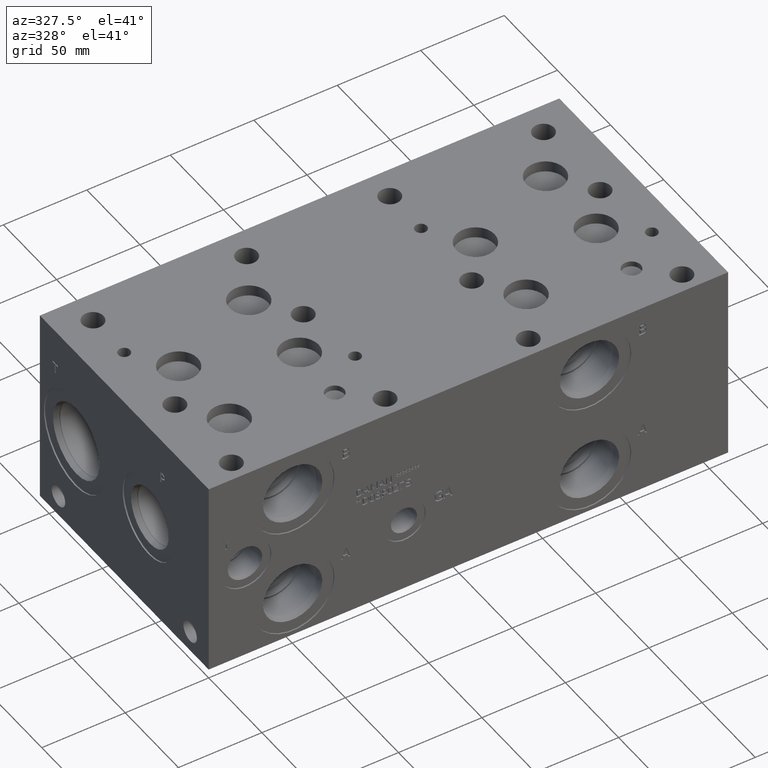
[diagram: clean part render]
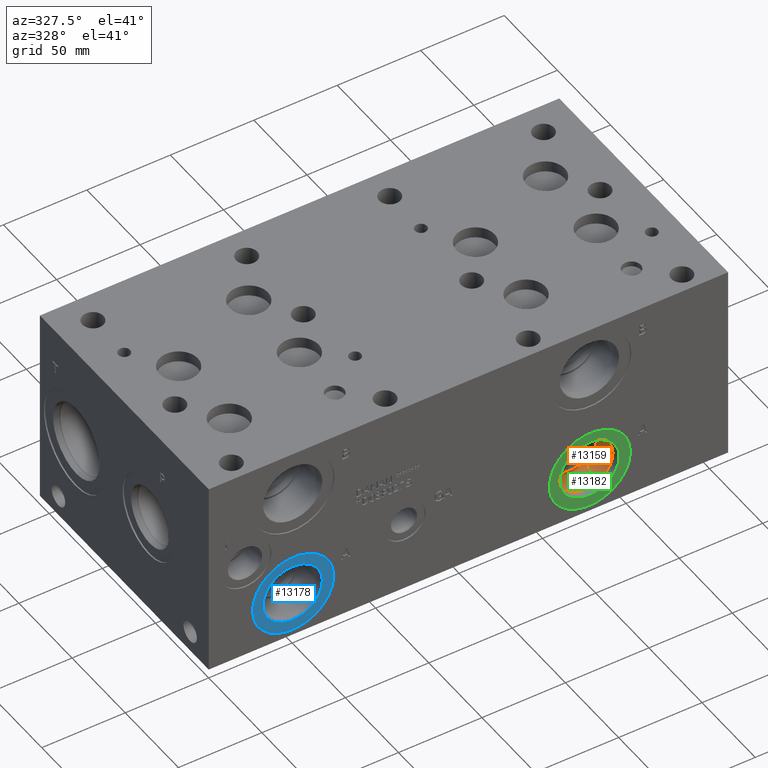
[diagram: same view with three faces highlighted in distinct colors, each labeled with its STEP entity id]
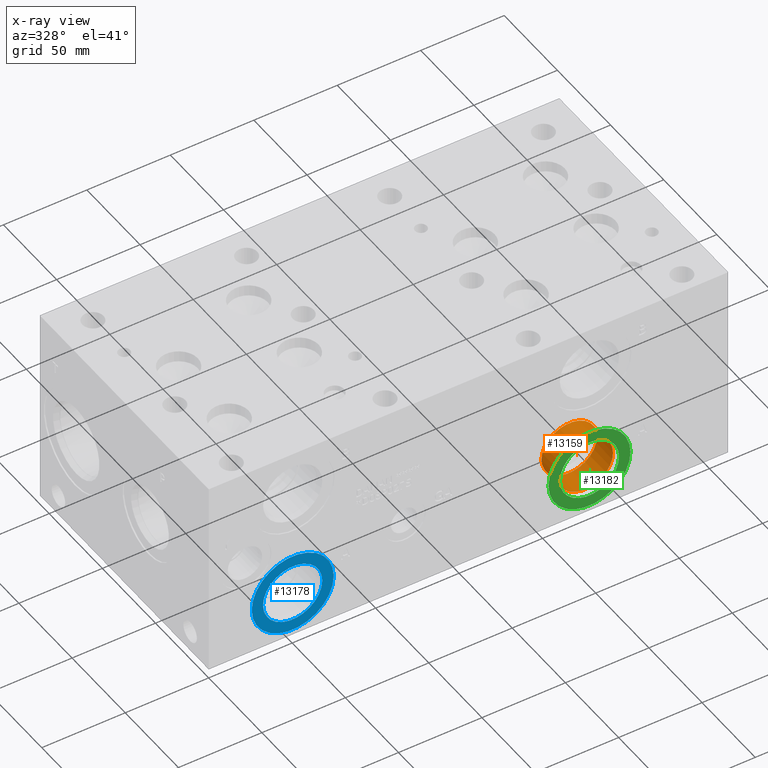
[diagram: x-ray of the same camera — body ghosted, the three highlighted faces saturated]
A machine part, auxiliary view with three faces highlighted in distinct colors.
The next image is the same camera in x-ray (body ghosted, the three faces saturated) — at least one of them is partly hidden behind the body in this view.
Their STEP definitions:

[orange] entity #13159 — the highlighted cylindrical surface (bore or boss wall) has radius 16.6751 mm, axis along (0, -1, 0).
#61=CYLINDRICAL_SURFACE('',#13900,16.6751);
#374=CIRCLE('',#13897,16.6751);
#375=CIRCLE('',#13898,16.6751);
#377=CIRCLE('',#13901,16.6751);
#1622=FACE_OUTER_BOUND('',#2396,.T.);
#2396=EDGE_LOOP('',(#11370,#11371,#11372,#11373,#11374));
#3627=LINE('',#22358,#4794);
#4794=VECTOR('',#16495,16.6751);
#6249=VERTEX_POINT('',#22349);
#6250=VERTEX_POINT('',#22350);
#6252=VERTEX_POINT('',#22356);
#8019=EDGE_CURVE('',#6249,#6250,#374,.T.);
#8020=EDGE_CURVE('',#6250,#6249,#375,.T.);
#8022=EDGE_CURVE('',#6252,#6252,#377,.T.);
#8023=EDGE_CURVE('',#6252,#6250,#3627,.T.);
#11370=ORIENTED_EDGE('',*,*,#8022,.F.);
#11371=ORIENTED_EDGE('',*,*,#8023,.T.);
#11372=ORIENTED_EDGE('',*,*,#8019,.F.);
#11373=ORIENTED_EDGE('',*,*,#8020,.F.);
#11374=ORIENTED_EDGE('',*,*,#8023,.F.);
#13159=ADVANCED_FACE('',(#1622),#61,.F.);
#13897=AXIS2_PLACEMENT_3D('',#22351,#16485,#16486);
#13898=AXIS2_PLACEMENT_3D('',#22352,#16487,#16488);
#13900=AXIS2_PLACEMENT_3D('',#22355,#16491,#16492);
#13901=AXIS2_PLACEMENT_3D('',#22357,#16493,#16494);
#16485=DIRECTION('center_axis',(0.,-1.,0.));
#16486=DIRECTION('ref_axis',(1.,0.,0.));
#16487=DIRECTION('center_axis',(0.,-1.,0.));
#16488=DIRECTION('ref_axis',(1.,0.,0.));
#16491=DIRECTION('center_axis',(0.,-1.,0.));
#16492=DIRECTION('ref_axis',(1.,0.,0.));
#16493=DIRECTION('center_axis',(0.,1.,0.));
#16494=DIRECTION('ref_axis',(1.,0.,0.));
#16495=DIRECTION('',(0.,1.,0.));
#22349=CARTESIAN_POINT('',(245.2751,19.8374,26.9748));
#22350=CARTESIAN_POINT('',(211.9249,19.8374,26.9748));
#22351=CARTESIAN_POINT('Origin',(228.6,19.8374,26.9748));
#22352=CARTESIAN_POINT('Origin',(228.6,19.8374,26.9748));
#22355=CARTESIAN_POINT('Origin',(228.6,9.9187,26.9748));
#22356=CARTESIAN_POINT('',(211.9249,4.8236788467706,26.9748));
#22357=CARTESIAN_POINT('Origin',(228.6,4.8236788467706,26.9748));
#22358=CARTESIAN_POINT('',(211.9249,9.9187,26.9748));

[blue] entity #13178 — the highlighted planar face has unit normal (0, -1, 0).
#399=CIRCLE('',#13942,24.5618);
#400=CIRCLE('',#13943,24.5618);
#401=CIRCLE('',#13944,17.7546);
#639=FACE_BOUND('',#2417,.T.);
#1023=PLANE('',#13941);
#1641=FACE_OUTER_BOUND('',#2416,.T.);
#2416=EDGE_LOOP('',(#11457,#11458));
#2417=EDGE_LOOP('',(#11459));
#6276=VERTEX_POINT('',#22439);
#6277=VERTEX_POINT('',#22440);
#6278=VERTEX_POINT('',#22443);
#8062=EDGE_CURVE('',#6276,#6277,#399,.T.);
#8063=EDGE_CURVE('',#6277,#6276,#400,.T.);
#8064=EDGE_CURVE('',#6278,#6278,#401,.T.);
#11457=ORIENTED_EDGE('',*,*,#8062,.T.);
#11458=ORIENTED_EDGE('',*,*,#8063,.T.);
#11459=ORIENTED_EDGE('',*,*,#8064,.F.);
#13178=ADVANCED_FACE('',(#1641,#639),#1023,.T.);
#13941=AXIS2_PLACEMENT_3D('',#22438,#16591,#16592);
#13942=AXIS2_PLACEMENT_3D('',#22441,#16593,#16594);
#13943=AXIS2_PLACEMENT_3D('',#22442,#16595,#16596);
#13944=AXIS2_PLACEMENT_3D('',#22444,#16597,#16598);
#16591=DIRECTION('center_axis',(0.,-1.,0.));
#16592=DIRECTION('ref_axis',(1.,0.,0.));
#16593=DIRECTION('center_axis',(0.,-1.,0.));
#16594=DIRECTION('ref_axis',(1.,0.,0.));
#16595=DIRECTION('center_axis',(0.,-1.,0.));
#16596=DIRECTION('ref_axis',(1.,0.,0.));
#16597=DIRECTION('center_axis',(0.,-1.,0.));
#16598=DIRECTION('ref_axis',(1.,0.,0.));
#22438=CARTESIAN_POINT('Origin',(50.8,0.7874,26.9748));
#22439=CARTESIAN_POINT('',(75.3618,0.7874,26.9748));
#22440=CARTESIAN_POINT('',(26.2382,0.7874,26.9748));
#22441=CARTESIAN_POINT('Origin',(50.8,0.7874,26.9748));
#22442=CARTESIAN_POINT('Origin',(50.8,0.7874,26.9748));
#22443=CARTESIAN_POINT('',(33.0454,0.7874,26.9748));
#22444=CARTESIAN_POINT('Origin',(50.8,0.7874,26.9748));

[green] entity #13182 — the highlighted planar face has unit normal (0, -1, 0).
#402=CIRCLE('',#13949,24.5618);
#403=CIRCLE('',#13950,24.5618);
#404=CIRCLE('',#13951,17.7546);
#640=FACE_BOUND('',#2422,.T.);
#1024=PLANE('',#13948);
#1645=FACE_OUTER_BOUND('',#2421,.T.);
#2421=EDGE_LOOP('',(#11474,#11475));
#2422=EDGE_LOOP('',(#11476));
#6280=VERTEX_POINT('',#22453);
#6281=VERTEX_POINT('',#22454);
#6282=VERTEX_POINT('',#22457);
#8068=EDGE_CURVE('',#6280,#6281,#402,.T.);
#8069=EDGE_CURVE('',#6281,#6280,#403,.T.);
#8070=EDGE_CURVE('',#6282,#6282,#404,.T.);
#11474=ORIENTED_EDGE('',*,*,#8068,.T.);
#11475=ORIENTED_EDGE('',*,*,#8069,.T.);
#11476=ORIENTED_EDGE('',*,*,#8070,.F.);
#13182=ADVANCED_FACE('',(#1645,#640),#1024,.T.);
#13948=AXIS2_PLACEMENT_3D('',#22452,#16608,#16609);
#13949=AXIS2_PLACEMENT_3D('',#22455,#16610,#16611);
#13950=AXIS2_PLACEMENT_3D('',#22456,#16612,#16613);
#13951=AXIS2_PLACEMENT_3D('',#22458,#16614,#16615);
#16608=DIRECTION('center_axis',(0.,-1.,0.));
#16609=DIRECTION('ref_axis',(1.,0.,0.));
#16610=DIRECTION('center_axis',(0.,-1.,0.));
#16611=DIRECTION('ref_axis',(1.,0.,0.));
#16612=DIRECTION('center_axis',(0.,-1.,0.));
#16613=DIRECTION('ref_axis',(1.,0.,0.));
#16614=DIRECTION('center_axis',(0.,-1.,0.));
#16615=DIRECTION('ref_axis',(1.,0.,0.));
#22452=CARTESIAN_POINT('Origin',(228.6,0.7874,26.9748));
#22453=CARTESIAN_POINT('',(253.1618,0.7874,26.9748));
#22454=CARTESIAN_POINT('',(204.0382,0.7874,26.9748));
#22455=CARTESIAN_POINT('Origin',(228.6,0.7874,26.9748));
#22456=CARTESIAN_POINT('Origin',(228.6,0.7874,26.9748));
#22457=CARTESIAN_POINT('',(210.8454,0.7874,26.9748));
#22458=CARTESIAN_POINT('Origin',(228.6,0.7874,26.9748));